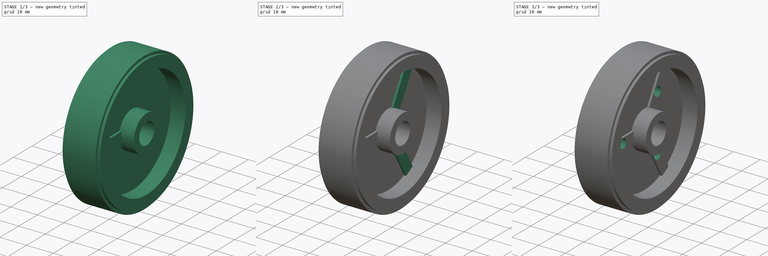
[diagram: build sequence overview — one tinted view per stage of 3, left to right]
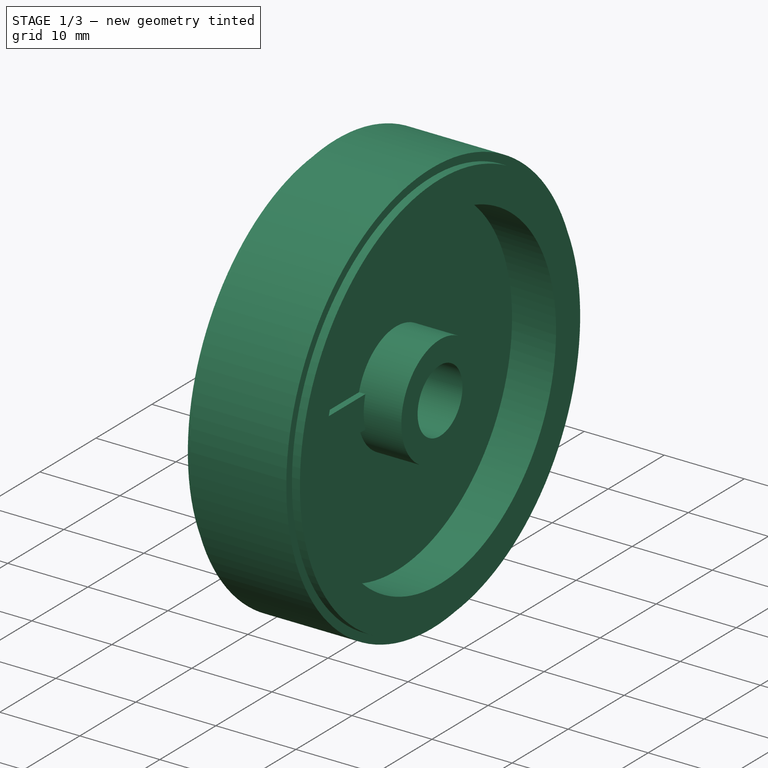
[diagram: stage 1 of 3 — iso view after this stage's code; geometry added in this stage tinted green]
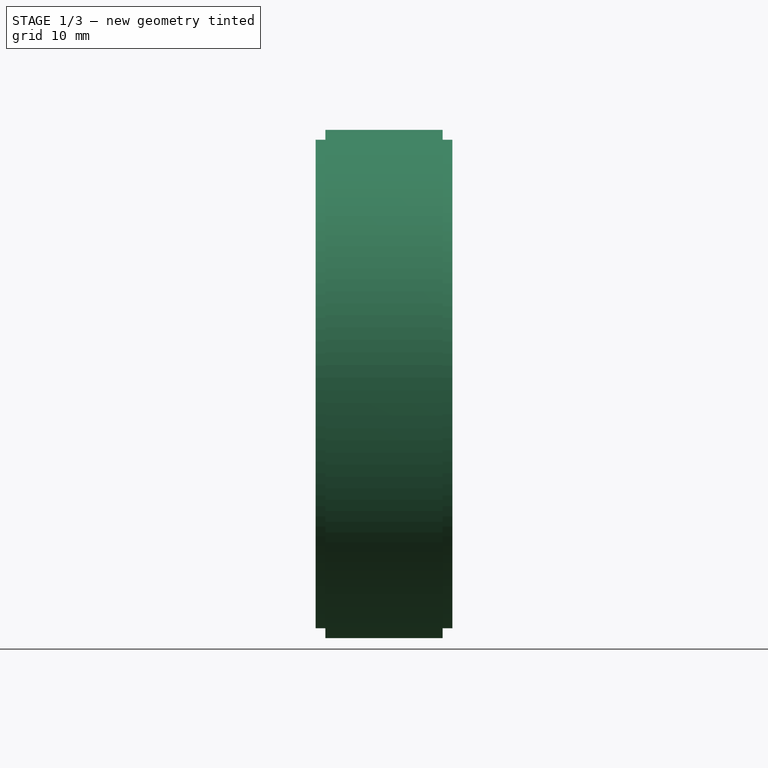
[diagram: stage 1 of 3 — front view after this stage's code; geometry added in this stage tinted green]
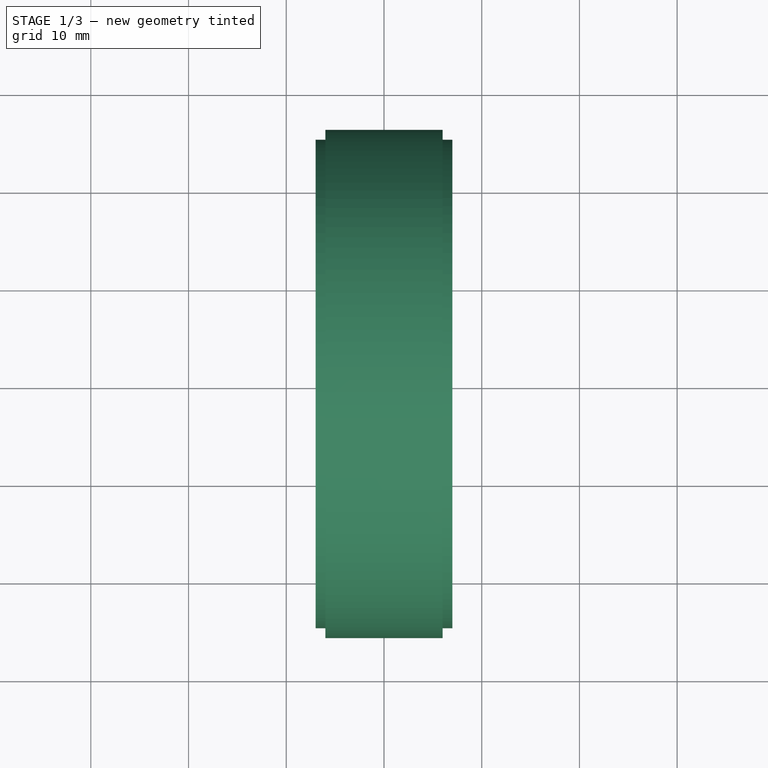
[diagram: stage 1 of 3 — top view after this stage's code; geometry added in this stage tinted green]
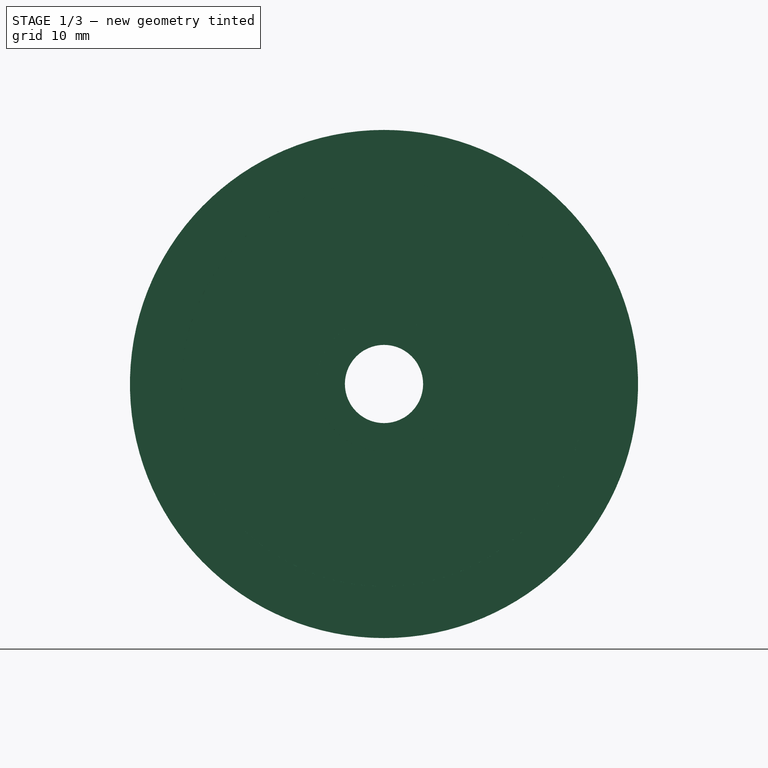
[diagram: stage 1 of 3 — right view after this stage's code; geometry added in this stage tinted green]
FCSTD DOCUMENT  (FreeCAD 0.17R13541 (Git))
Label: HP600_wheel-52mm
License: All rights reserved
LicenseURL: http://en.wikipedia.org/wiki/All_rights_reserved
objects: Sketcher::SketchObject×3, PartDesign::PolarPattern×2, PartDesign::Revolution×1, PartDesign::Pad×1, PartDesign::Pocket×1, PartDesign::Body×1
note: 12 computed .brp shape members not serialized (recipe doc carries the construction recipe); baked Part::Feature solids carry a one-line shape summary decoded from their .brp

FEATURE [Sketcher::SketchObject] Sketch
  MapMode = 5
  Placement = pos=(0,0,0) rot=(1,0,0;1.5708rad)
  Support = -> [XZ_Plane]
  sketch-geometry (20):
    g0: LineSegment StartX=-7 StartY=4 StartZ=0 EndX=7 EndY=4 EndZ=0
    g1: LineSegment StartX=7 StartY=4 StartZ=0 EndX=7 EndY=6.9 EndZ=0
    g2: LineSegment StartX=7 StartY=6.9 StartZ=0 EndX=1.5 EndY=6.9 EndZ=0
    g3: LineSegment StartX=1.5 StartY=6.9 StartZ=0 EndX=1.5 EndY=20.7 EndZ=0
    g4: LineSegment StartX=1.5 StartY=20.7 StartZ=0 EndX=7 EndY=20.7 EndZ=0
    g5: LineSegment StartX=7 StartY=20.7 StartZ=0 EndX=7 EndY=25 EndZ=0
    g6: LineSegment StartX=7 StartY=25 StartZ=0 EndX=6 EndY=25 EndZ=0
    g7: LineSegment StartX=6 StartY=25 StartZ=0 EndX=6 EndY=26 EndZ=0
    g8: LineSegment StartX=6 StartY=26 StartZ=0 EndX=-6 EndY=26 EndZ=0
    g9: LineSegment StartX=-6 StartY=26 StartZ=0 EndX=-6 EndY=25 EndZ=0
    g10: LineSegment StartX=-6 StartY=25 StartZ=0 EndX=-7 EndY=25 EndZ=0
    g11: LineSegment StartX=-7 StartY=25 StartZ=0 EndX=-7 EndY=20.7 EndZ=0
    g12: LineSegment StartX=-7 StartY=20.7 StartZ=0 EndX=-1.5 EndY=20.7 EndZ=0
    g13: LineSegment StartX=-1.5 StartY=20.7 StartZ=0 EndX=-1.5 EndY=13 EndZ=0
    g14: LineSegment StartX=-1.5 StartY=13 StartZ=0 EndX=-3.5 EndY=13 EndZ=0
    g15: LineSegment StartX=-3.5 StartY=13 StartZ=0 EndX=-3.5 EndY=10.5 EndZ=0
    g16: LineSegment StartX=-3.5 StartY=10.5 StartZ=0 EndX=-1.5 EndY=10.5 EndZ=0
    g17: LineSegment StartX=-1.5 StartY=10.5 StartZ=0 EndX=-1.5 EndY=6.9 EndZ=0
    g18: LineSegment StartX=-1.5 StartY=6.9 StartZ=0 EndX=-7 EndY=6.9 EndZ=0
    g19: LineSegment StartX=-7 StartY=6.9 StartZ=0 EndX=-7 EndY=4 EndZ=0
  constraints (59):
    c: Horizontal(g0)
    c: Coincident(g0,g1)
    c: Vertical(g1)
    c: Coincident(g1,g2)
    c: Horizontal(g2)
    c: Coincident(g2,g3)
    c: Vertical(g3)
    c: Coincident(g3,g4)
    c: Horizontal(g4)
    c: Coincident(g4,g5)
    c: Vertical(g5)
    c: Coincident(g5,g6)
    c: Coincident(g6,g7)
    c: Coincident(g7,g8)
    c: Horizontal(g8)
    c: Coincident(g8,g9)
    c: Vertical(g9)
    c: Coincident(g9,g10)
    c: Horizontal(g10)
    c: Coincident(g10,g11)
    c: Vertical(g11)
    c: Coincident(g11,g12)
    c: Horizontal(g12)
    c: Coincident(g12,g13)
    c: Vertical(g13)
    c: Coincident(g13,g14)
    c: Coincident(g14,g15)
    c: Coincident(g15,g16)
    c: Coincident(g16,g17)
    c: Vertical(g17)
    c: Coincident(g17,g18)
    c: Coincident(g18,g19)
    c: Coincident(g19,g0)
    c: Vertical(g19)
    c: Horizontal(g18)
    c: DistanceY(g0) = 4
    c: DistanceX(g0,g0) = 14
    c: Equal(g19,g1)
    c: Equal(g12,g4)
    c: Equal(g18,g2)
    c: Symmetric(g17,g2,g-2)
    c: Vertical(g15)
    c: Horizontal(g14)
    c: Horizontal(g16)
    c: Equal(g14,g16)
    c: DistanceX(g16,g16) = 2
    c: DistanceX(g10,g5) = 14
    c: Vertical(g7)
    c: Horizontal(g6)
    c: Equal(g11,g5)
    c: Symmetric(g9,g6,g-2)
    c: DistanceX(g6,g6) = 1
    c: DistanceY(g1) = 6.9
    c: DistanceY(g5) = 25
    c: DistanceY(g4) = 20.7
    c: DistanceY(g7) = 26
    c: DistanceY(g15) = 10.5
    c: DistanceY(g14) = 13
    c: DistanceX(g2,g2) = 5.5
FEATURE [PartDesign::Revolution] Revolution
  Angle = 360
  Axis = (1,0,0)
  Base = (0,0,0)
  Placement = pos=(0,0,0) rot=(1,0,0;1.5708rad)
  Profile = -> Sketch
  ReferenceAxis = -> X_Axis
FEATURE [Sketcher::SketchObject] Sketch001
  MapMode = 5
  Placement = pos=(1.5,0,0) rot=(0.707107,0,0.707107;3.14159rad)
  Support = -> [Revolution]
  sketch-geometry (6):
    g0: LineSegment [constr] StartX=-2 StartY=20.6032 StartZ=0 EndX=2 EndY=20.6032 EndZ=0
    g1: LineSegment StartX=2 StartY=20.6032 StartZ=0 EndX=2 EndY=6.60379 EndZ=0
    g2: LineSegment [constr] StartX=2 StartY=6.60379 StartZ=0 EndX=-2 EndY=6.60379 EndZ=0
    g3: LineSegment StartX=-2 StartY=6.60379 StartZ=0 EndX=-2 EndY=20.6032 EndZ=0
    g4: ArcOfCircle CenterX=0 CenterY=0 CenterZ=0 NormalX=0 NormalY=0 NormalZ=1 AngleXU=0 Radius=6.9 StartAngle=1.27672 EndAngle=1.86487
    g5: ArcOfCircle CenterX=0 CenterY=0 CenterZ=0 NormalX=0 NormalY=0 NormalZ=1 AngleXU=0 Radius=20.7 StartAngle=1.47403 EndAngle=1.66757
  constraints (17):
    c: Coincident(g0,g1)
    c: Coincident(g1,g2)
    c: Coincident(g2,g3)
    c: Coincident(g3,g0)
    c: Horizontal(g0)
    c: Horizontal(g2)
    c: Vertical(g1)
    c: Vertical(g3)
    c: Coincident(g4,g-1)
    c: Coincident(g4,g2)
    c: Coincident(g4,g1)
    c: Coincident(g5,g-1)
    c: Coincident(g5,g0)
    c: Coincident(g5,g0)
    c: Radius(g4) = 6.9
    c: Radius(g5) = 20.7
    c: DistanceX(g2,g1) = 4
FEATURE [PartDesign::Pad] Pad
  BaseFeature = -> Revolution
  Length = 0.8
  Length2 = 100
  Placement = pos=(0,0,0) rot=(1,0,0;1.5708rad)
  Profile = -> Sketch001
  Type = 0
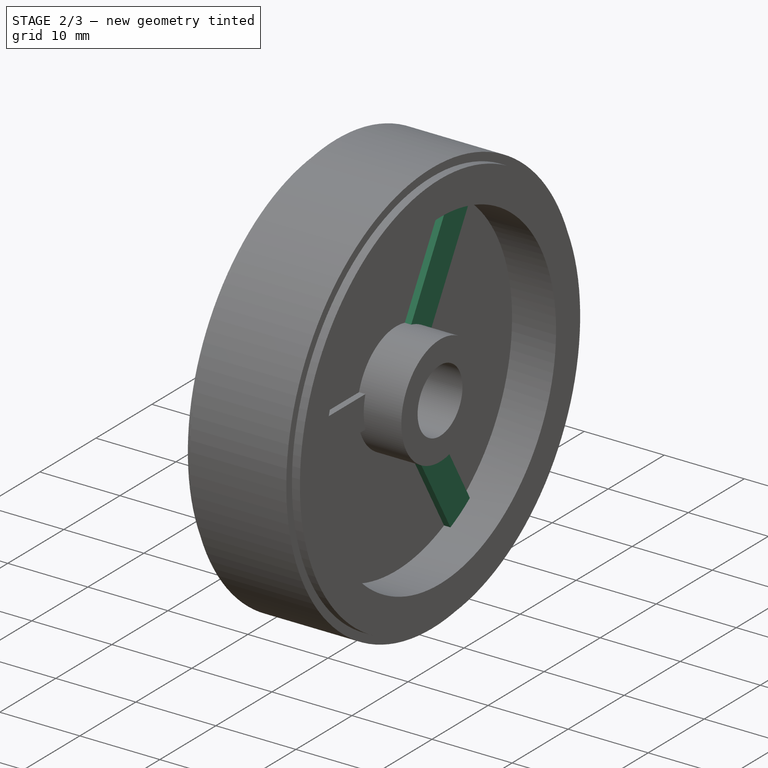
[diagram: stage 2 of 3 — iso view after this stage's code; geometry added in this stage tinted green]
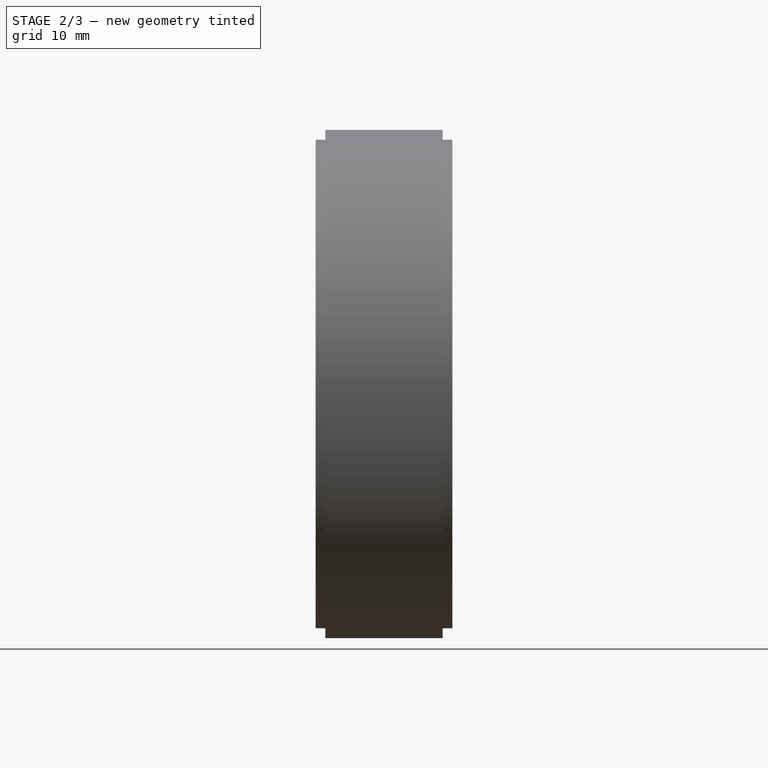
[diagram: stage 2 of 3 — front view after this stage's code; geometry added in this stage tinted green]
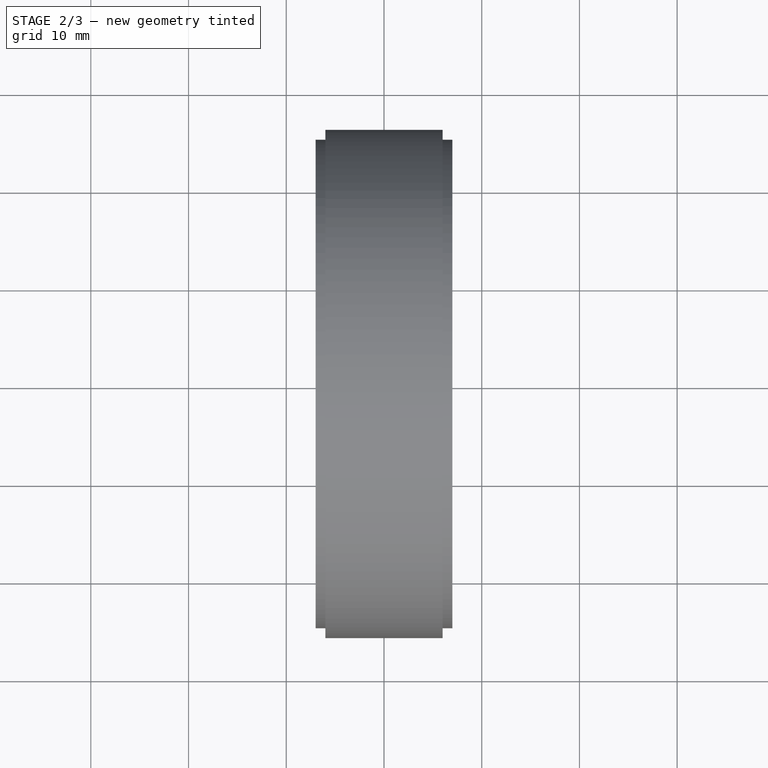
[diagram: stage 2 of 3 — top view after this stage's code; geometry added in this stage tinted green]
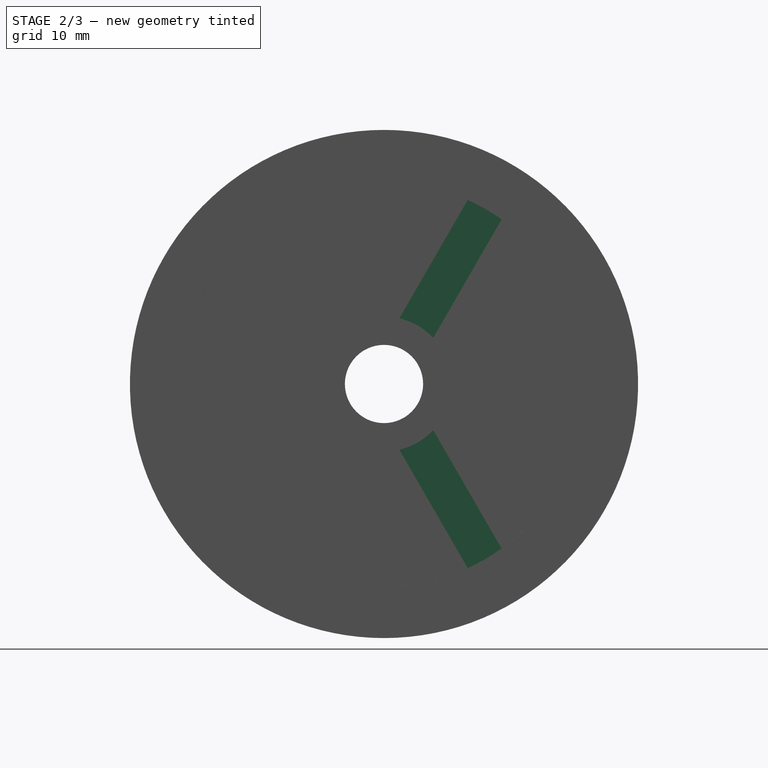
[diagram: stage 2 of 3 — right view after this stage's code; geometry added in this stage tinted green]
FEATURE [PartDesign::PolarPattern] PolarPattern
  Angle = 360
  Axis = -> Sketch001 [N_Axis]
  BaseFeature = -> Pad
  Occurrences = 3
  Originals = -> [Pad]
  Placement = pos=(0,0,0) rot=(1,0,0;1.5708rad)
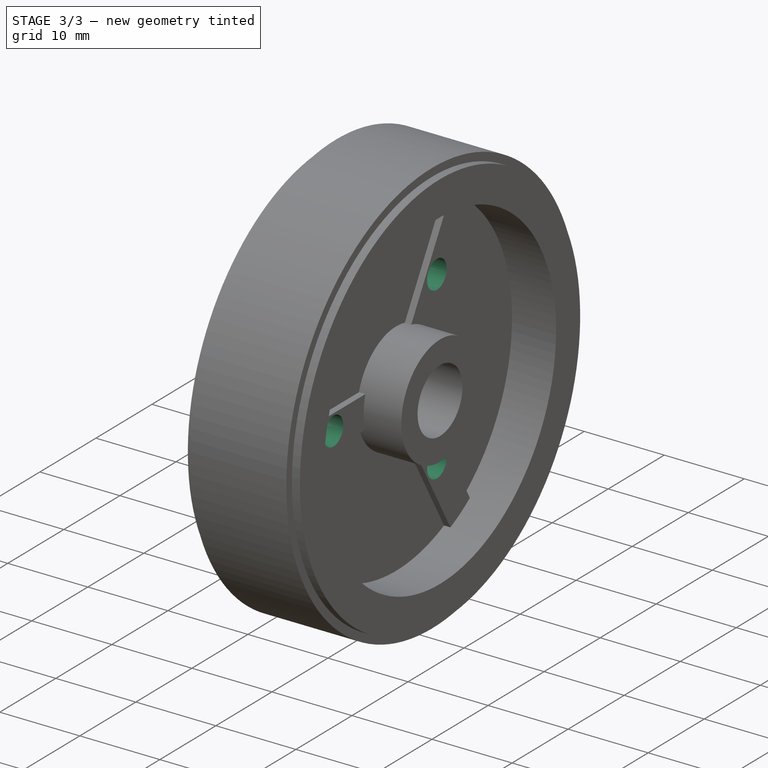
[diagram: stage 3 of 3 — iso view after this stage's code; geometry added in this stage tinted green]
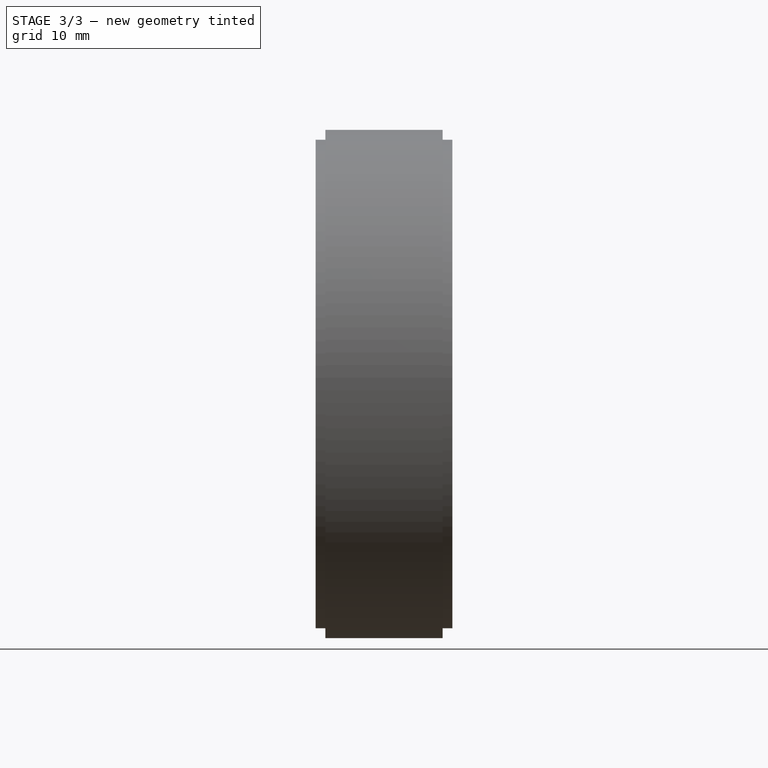
[diagram: stage 3 of 3 — front view after this stage's code; geometry added in this stage tinted green]
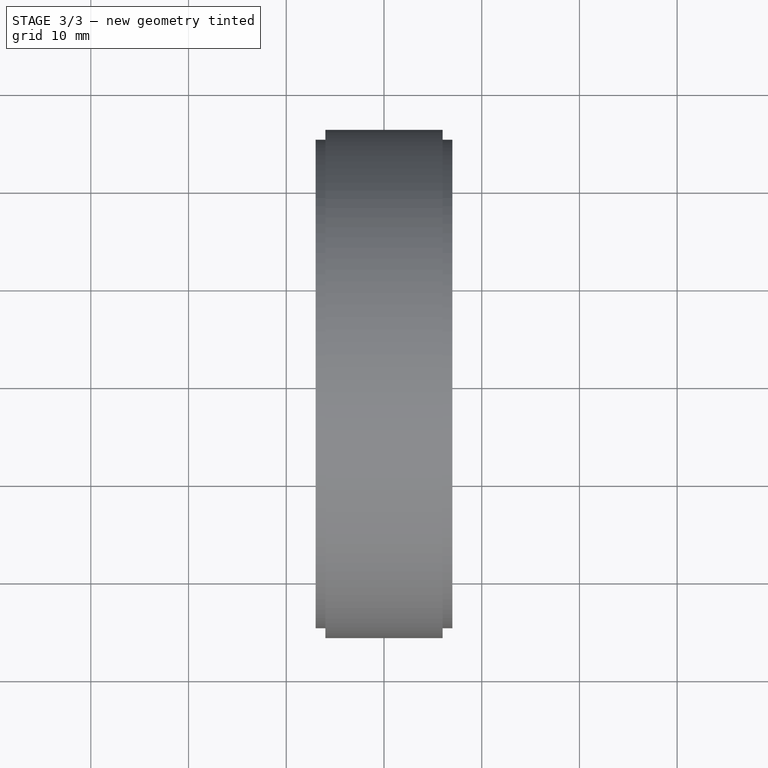
[diagram: stage 3 of 3 — top view after this stage's code; geometry added in this stage tinted green]
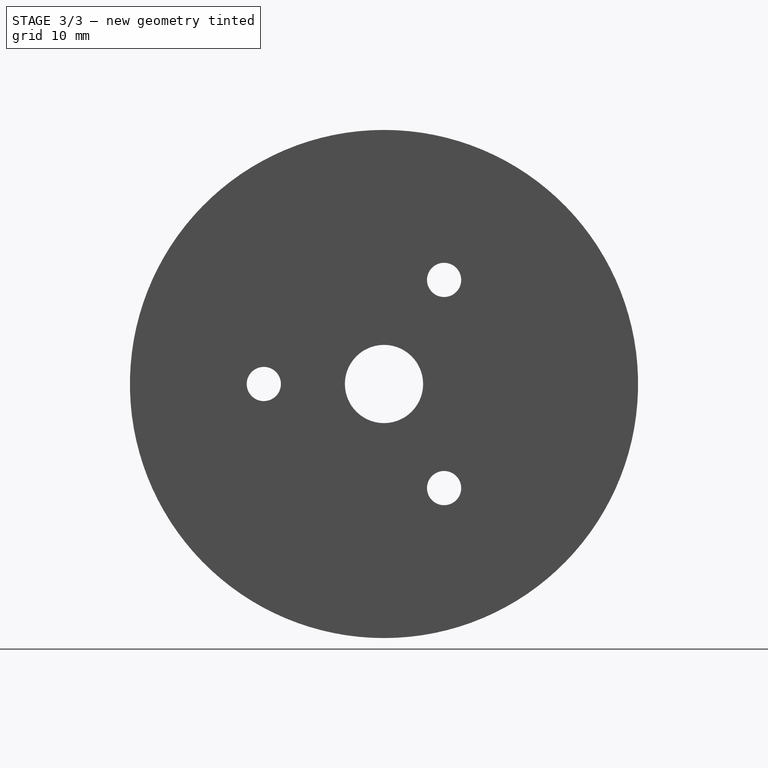
[diagram: stage 3 of 3 — right view after this stage's code; geometry added in this stage tinted green]
FEATURE [Sketcher::SketchObject] Sketch002
  MapMode = 5
  Placement = pos=(7,0,0) rot=(0.707107,0,0.707107;3.14159rad)
  Support = -> [PolarPattern]
  sketch-geometry (1):
    g0: Circle CenterX=0 CenterY=12.3 CenterZ=0 NormalX=0 NormalY=0 NormalZ=1 AngleXU=0 Radius=1.75
  constraints (3):
    c: PointOnObject(g0,g-2)
    c: Radius(g0) = 1.75
    c: DistanceY(g0) = 12.3
FEATURE [PartDesign::Pocket] Pocket
  BaseFeature = -> PolarPattern
  Length = 5
  Length2 = 100
  Placement = pos=(0,0,0) rot=(1,0,0;1.5708rad)
  Profile = -> Sketch002
  Type = 1
FEATURE [PartDesign::PolarPattern] PolarPattern001
  Angle = 360
  Axis = -> Sketch002 [N_Axis]
  BaseFeature = -> Pocket
  Occurrences = 3
  Originals = -> [Pocket]
  Placement = pos=(0,0,0) rot=(1,0,0;1.5708rad)
FEATURE [PartDesign::Body] Body
  Group = -> [Sketch,Revolution,Sketch001,Pad,PolarPattern,Sketch002,Pocket,PolarPattern001]
  Origin = -> Origin
  Tip = -> PolarPattern001
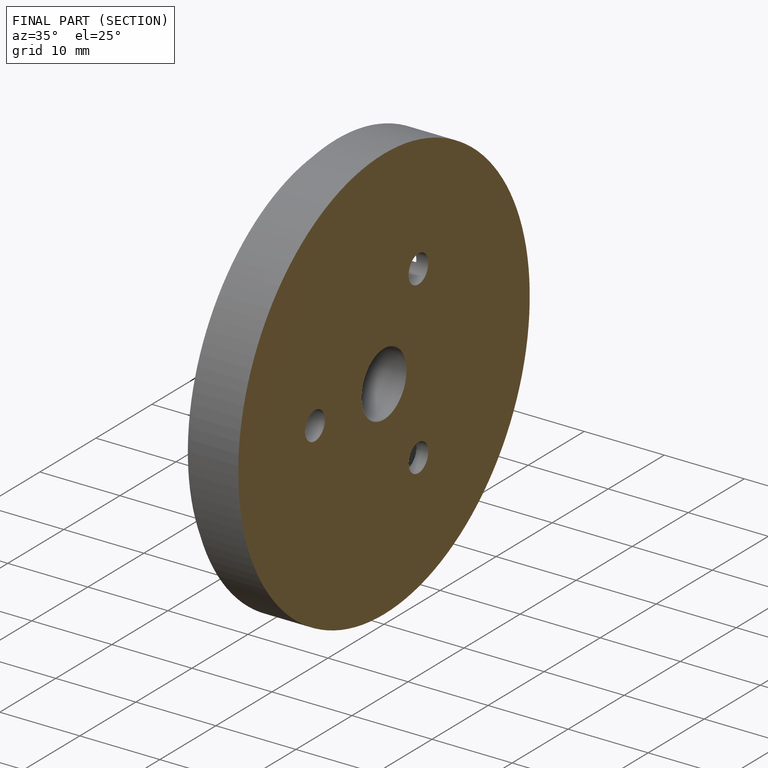
[diagram: finished part — half-section view (interior)]
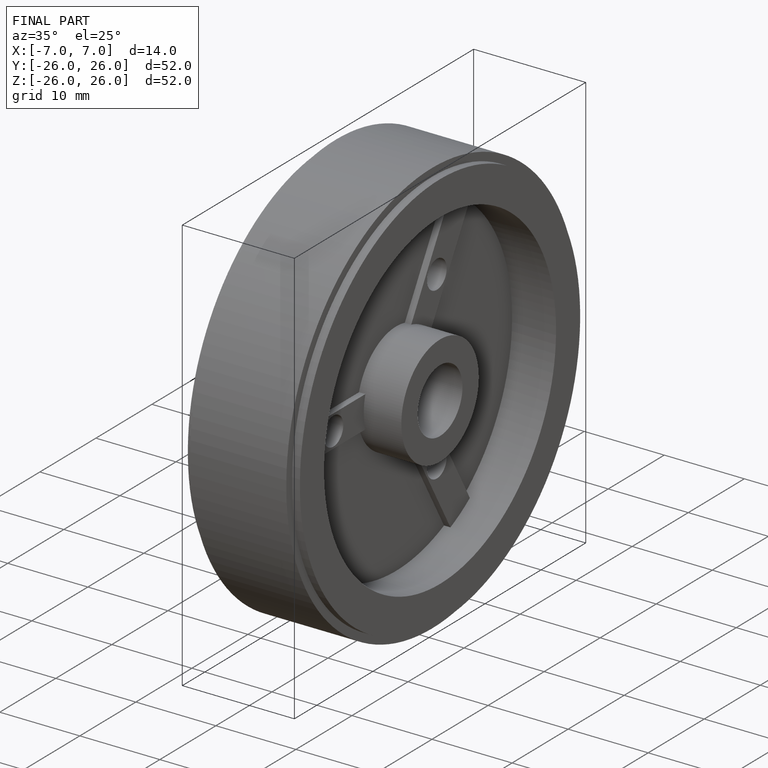
[diagram: finished part — iso view with bounding-box wireframe]
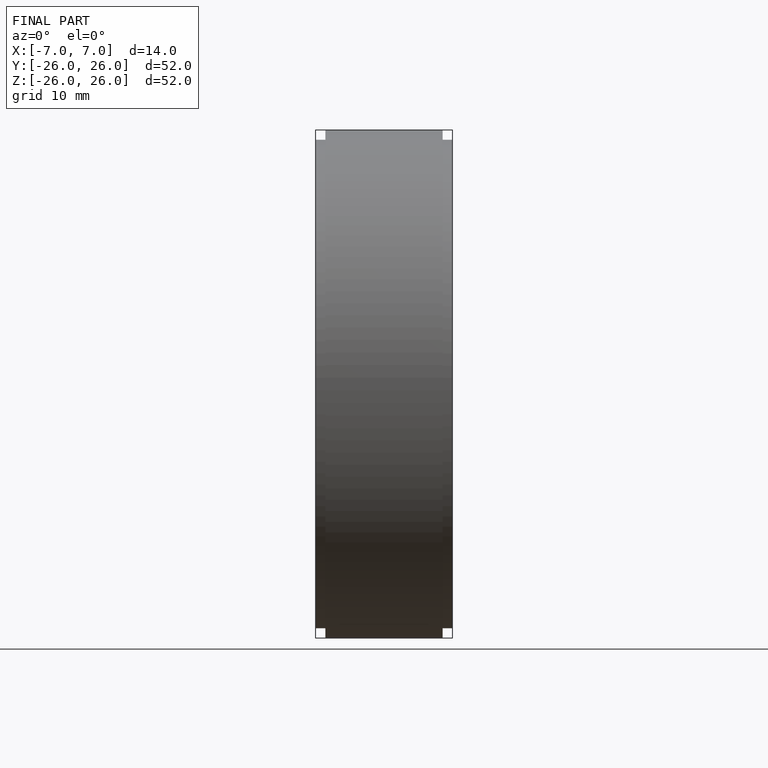
[diagram: finished part — front view with bounding-box wireframe]
